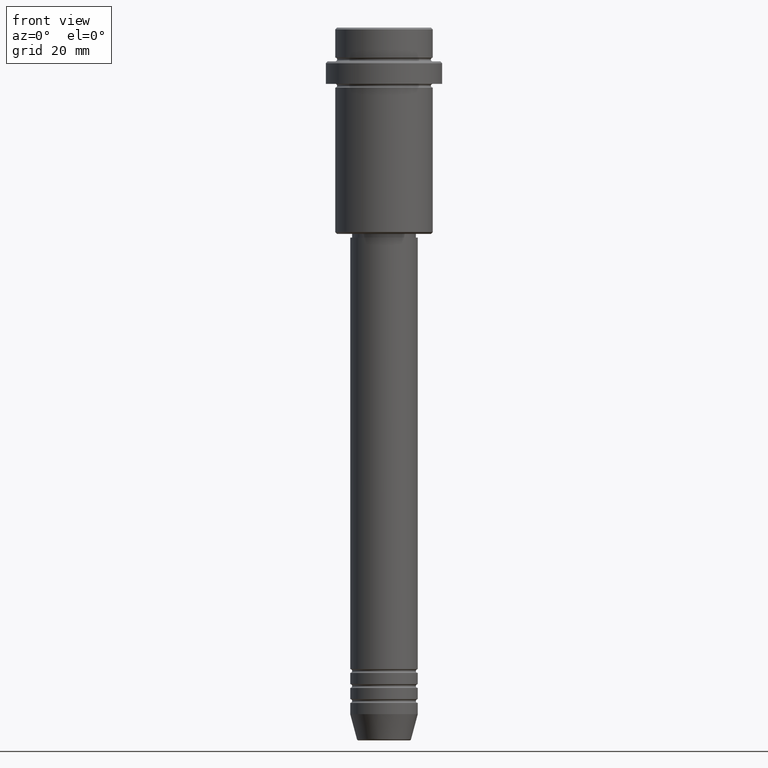
[diagram: clean part render]
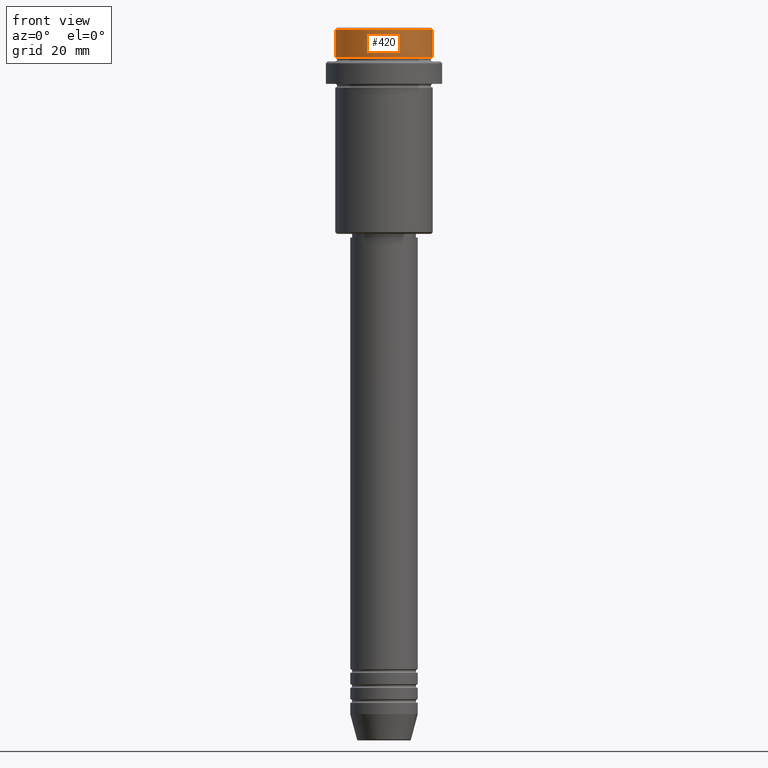
[diagram: same view with one face highlighted and labeled with its STEP entity id]
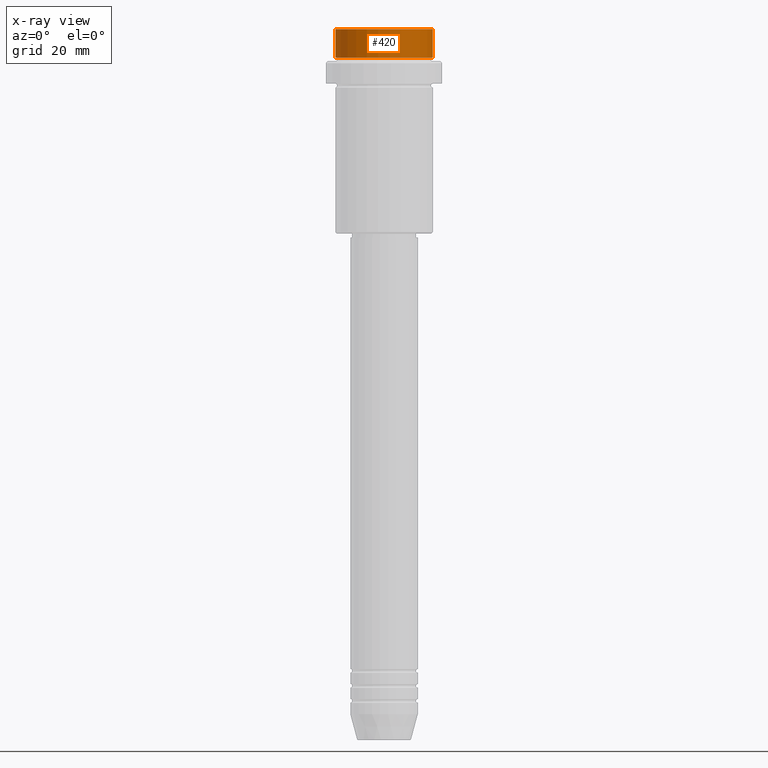
[diagram: x-ray of the same camera — body ghosted, the highlighted face saturated]
A machine part, front view. The second image highlights one B-rep face of the part: STEP entity #420.
The next image is the same camera in x-ray: the body ghosted, the highlighted face saturated — about 0% of this face is hidden behind the body in this view.
In plain terms, the highlighted cylindrical surface (partial cylindrical patch) has radius 13 mm, axis along (-0, -0, 1).
Its self-contained STEP definition (entity closure, byte-faithful):
#32 = EDGE_CURVE ( 'NONE', #1407, #1304, #218, .T. ) ;
#54 = VERTEX_POINT ( 'NONE', #576 ) ;
#56 = CARTESIAN_POINT ( 'NONE',  ( 12.99999999999999822, 0.000000000000000000, 0.000000000000000000 ) ) ;
#80 = VECTOR ( 'NONE', #1041, 1000.000000000000000 ) ;
#218 = CIRCLE ( 'NONE', #1019, 12.99999999999999822 ) ;
#229 = EDGE_CURVE ( 'NONE', #1407, #657, #1401, .T. ) ;
#266 = AXIS2_PLACEMENT_3D ( 'NONE', #977, #1198, #323 ) ;
#267 = CARTESIAN_POINT ( 'NONE',  ( -12.99999999999999822, 1.592040838891558898E-15, -7.999999999999998224 ) ) ;
#323 = DIRECTION ( 'NONE',  ( 1.000000000000000000, 0.000000000000000000, 0.000000000000000000 ) ) ;
#337 = DIRECTION ( 'NONE',  ( 1.000000000000000000, 0.000000000000000000, 0.000000000000000000 ) ) ;
#420 = ADVANCED_FACE ( 'NONE', ( #1319 ), #545, .T. ) ;
#423 = DIRECTION ( 'NONE',  ( 1.000000000000000000, 0.000000000000000000, 0.000000000000000000 ) ) ;
#483 = CARTESIAN_POINT ( 'NONE',  ( -12.99999999999999822, 1.592040838891558898E-15, -0.4999999999999761302 ) ) ;
#520 = VECTOR ( 'NONE', #1281, 1000.000000000000000 ) ;
#545 = CYLINDRICAL_SURFACE ( 'NONE', #1200, 12.99999999999999822 ) ;
#576 = CARTESIAN_POINT ( 'NONE',  ( 12.99999999999999822, 0.000000000000000000, -0.4999999999999761302 ) ) ;
#657 = VERTEX_POINT ( 'NONE', #483 ) ;
#725 = ORIENTED_EDGE ( 'NONE', *, *, #229, .F. ) ;
#853 = EDGE_CURVE ( 'NONE', #54, #657, #872, .T. ) ;
#857 = CARTESIAN_POINT ( 'NONE',  ( 12.99999999999999822, 0.000000000000000000, -7.999999999999998224 ) ) ;
#872 = CIRCLE ( 'NONE', #266, 12.99999999999999822 ) ;
#873 = ORIENTED_EDGE ( 'NONE', *, *, #1222, .T. ) ;
#874 = EDGE_LOOP ( 'NONE', ( #725, #1249, #873, #1051 ) ) ;
#966 = CARTESIAN_POINT ( 'NONE',  ( -12.99999999999999822, 1.592040838891558898E-15, 0.000000000000000000 ) ) ;
#977 = CARTESIAN_POINT ( 'NONE',  ( 0.000000000000000000, 0.000000000000000000, -0.4999999999999761302 ) ) ;
#1019 = AXIS2_PLACEMENT_3D ( 'NONE', #1199, #1189, #423 ) ;
#1041 = DIRECTION ( 'NONE',  ( -0.000000000000000000, -0.000000000000000000, 1.000000000000000000 ) ) ;
#1051 = ORIENTED_EDGE ( 'NONE', *, *, #853, .T. ) ;
#1104 = CARTESIAN_POINT ( 'NONE',  ( 0.000000000000000000, 0.000000000000000000, 0.000000000000000000 ) ) ;
#1189 = DIRECTION ( 'NONE',  ( -0.000000000000000000, -0.000000000000000000, 1.000000000000000000 ) ) ;
#1198 = DIRECTION ( 'NONE',  ( 0.000000000000000000, 0.000000000000000000, -1.000000000000000000 ) ) ;
#1199 = CARTESIAN_POINT ( 'NONE',  ( 0.000000000000000000, 0.000000000000000000, -7.999999999999998224 ) ) ;
#1200 = AXIS2_PLACEMENT_3D ( 'NONE', #1104, #1217, #337 ) ;
#1217 = DIRECTION ( 'NONE',  ( -0.000000000000000000, -0.000000000000000000, 1.000000000000000000 ) ) ;
#1222 = EDGE_CURVE ( 'NONE', #1304, #54, #1398, .T. ) ;
#1249 = ORIENTED_EDGE ( 'NONE', *, *, #32, .T. ) ;
#1281 = DIRECTION ( 'NONE',  ( -0.000000000000000000, -0.000000000000000000, 1.000000000000000000 ) ) ;
#1304 = VERTEX_POINT ( 'NONE', #857 ) ;
#1319 = FACE_OUTER_BOUND ( 'NONE', #874, .T. ) ;
#1398 = LINE ( 'NONE', #56, #80 ) ;
#1401 = LINE ( 'NONE', #966, #520 ) ;
#1407 = VERTEX_POINT ( 'NONE', #267 ) ;